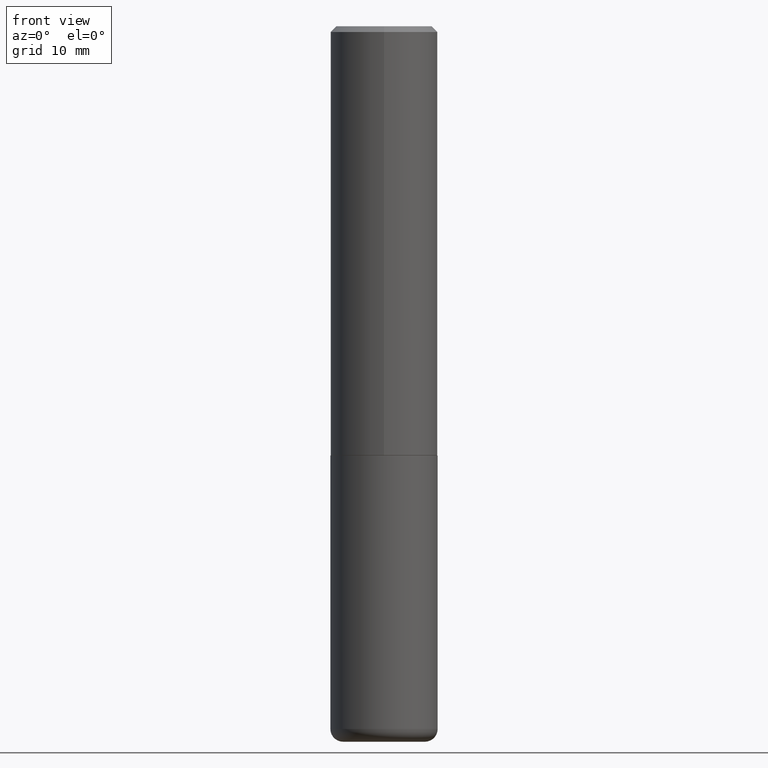
[diagram: clean part render]
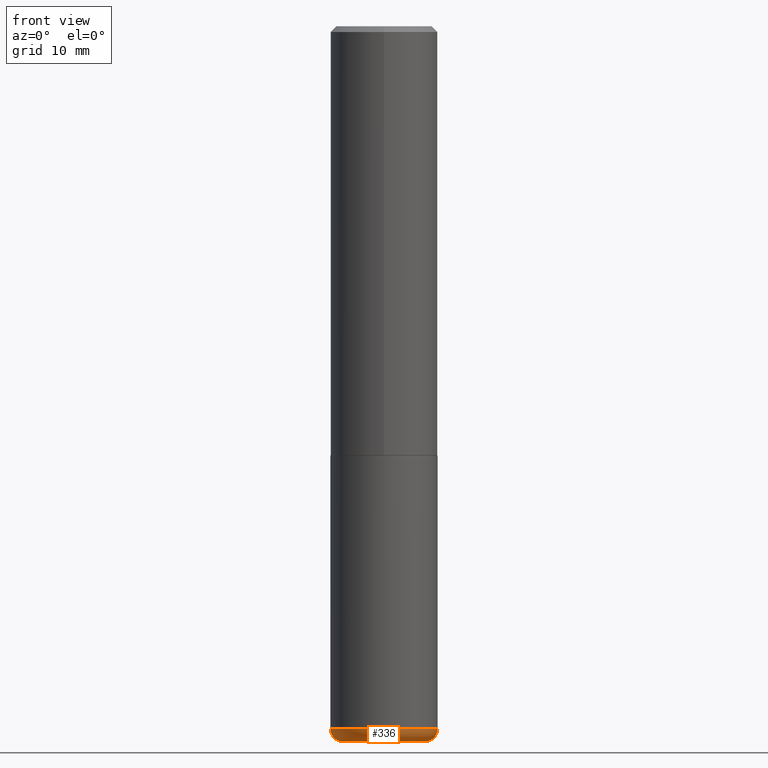
[diagram: same view with one face highlighted and labeled with its STEP entity id]
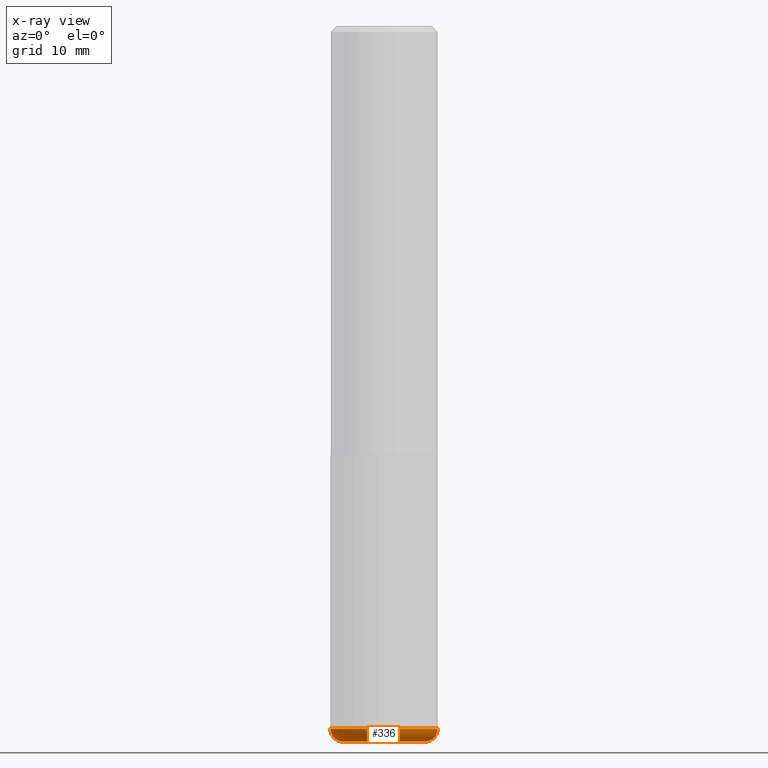
[diagram: x-ray of the same camera — body ghosted, the highlighted face saturated]
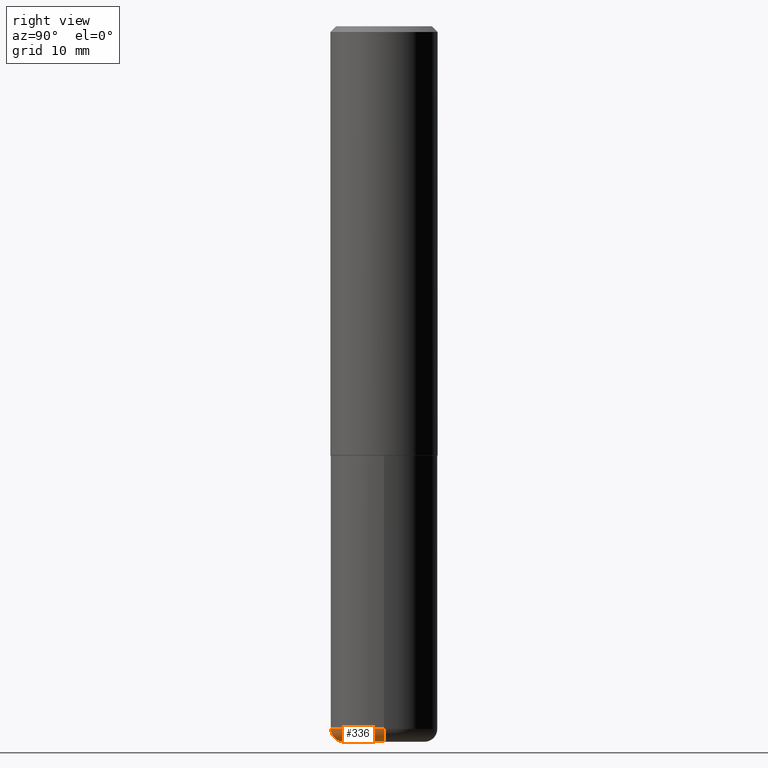
[diagram: same view with one face highlighted and labeled with its STEP entity id]
A machine part, front view. The second image highlights one B-rep face of the part: STEP entity #336.
The next image is the same camera in x-ray: the body ghosted, the highlighted face saturated — about 0% of this face is hidden behind the body in this view.
A second angle (right view) of the same face is appended — the face is thin or edge-on in the first view.
In plain terms, the highlighted toroidal blend (fillet) surface has major radius 3.6195 mm and minor (blend) radius 1.143 mm.
Its self-contained STEP definition (entity closure, byte-faithful):
#11 = VERTEX_POINT ( 'NONE', #292 ) ;
#14 = CARTESIAN_POINT ( 'NONE',  ( 6.003625919184510659E-29, -8.571586686859923311E-15, -2.455000000000000071 ) ) ;
#16 = CARTESIAN_POINT ( 'NONE',  ( -0.1425000000000000155, -7.559063288401780041E-15, -2.455000000000000071 ) ) ;
#32 = CARTESIAN_POINT ( 'NONE',  ( 6.113672015462842613E-29, -8.728703347107864943E-15, -2.500000000000000000 ) ) ;
#84 = AXIS2_PLACEMENT_3D ( 'NONE', #414, #194, #88 ) ;
#87 = TOROIDAL_SURFACE ( 'NONE', #306, 0.1425000000000000155, 0.04499999999999996364 ) ;
#88 = DIRECTION ( 'NONE',  ( 1.000000000000000000, -6.982962677686273810E-15, 0.000000000000000000 ) ) ;
#96 = CARTESIAN_POINT ( 'NONE',  ( -0.1874999999999999722, -7.239319057309735462E-15, -2.455000000000000071 ) ) ;
#115 = DIRECTION ( 'NONE',  ( -2.445468806185136597E-29, 3.491481338843145583E-15, 1.000000000000000000 ) ) ;
#119 = EDGE_LOOP ( 'NONE', ( #259, #248, #222, #187 ) ) ;
#139 = CIRCLE ( 'NONE', #418, 0.04499999999999996364 ) ;
#154 = VERTEX_POINT ( 'NONE', #274 ) ;
#161 = DIRECTION ( 'NONE',  ( -2.445468806185136597E-29, 3.491481338843145583E-15, 1.000000000000000000 ) ) ;
#166 = EDGE_CURVE ( 'NONE', #383, #315, #293, .T. ) ;
#184 = DIRECTION ( 'NONE',  ( 1.000000000000000000, -6.982962677686269077E-15, 4.883557194083113462E-29 ) ) ;
#187 = ORIENTED_EDGE ( 'NONE', *, *, #166, .F. ) ;
#188 = AXIS2_PLACEMENT_3D ( 'NONE', #14, #245, #211 ) ;
#193 = AXIS2_PLACEMENT_3D ( 'NONE', #32, #161, #246 ) ;
#194 = DIRECTION ( 'NONE',  ( -6.982962677686266711E-15, -1.000000000000000000, 3.491481338843145583E-15 ) ) ;
#211 = DIRECTION ( 'NONE',  ( 1.000000000000000000, -6.982962677686266711E-15, 0.000000000000000000 ) ) ;
#222 = ORIENTED_EDGE ( 'NONE', *, *, #283, .T. ) ;
#242 = DIRECTION ( 'NONE',  ( 7.105427357601001859E-15, 1.000000000000000000, -3.491481338843145583E-15 ) ) ;
#245 = DIRECTION ( 'NONE',  ( -2.445468806185136597E-29, 3.491481338843145583E-15, 1.000000000000000000 ) ) ;
#246 = DIRECTION ( 'NONE',  ( 1.000000000000000000, -6.982962677686266711E-15, 0.000000000000000000 ) ) ;
#247 = CARTESIAN_POINT ( 'NONE',  ( 6.003625919184510659E-29, -8.571586686859923311E-15, -2.455000000000000071 ) ) ;
#248 = ORIENTED_EDGE ( 'NONE', *, *, #290, .T. ) ;
#253 = EDGE_CURVE ( 'NONE', #11, #383, #139, .T. ) ;
#259 = ORIENTED_EDGE ( 'NONE', *, *, #253, .F. ) ;
#274 = CARTESIAN_POINT ( 'NONE',  ( 0.1425000000000000155, -9.723775528678158264E-15, -2.500000000000000000 ) ) ;
#283 = EDGE_CURVE ( 'NONE', #154, #315, #384, .T. ) ;
#290 = EDGE_CURVE ( 'NONE', #11, #154, #309, .T. ) ;
#292 = CARTESIAN_POINT ( 'NONE',  ( -0.1425000000000000155, -7.477749502979727779E-15, -2.500000000000000000 ) ) ;
#293 = CIRCLE ( 'NONE', #188, 0.1875000000000000278 ) ;
#306 = AXIS2_PLACEMENT_3D ( 'NONE', #247, #115, #184 ) ;
#309 = CIRCLE ( 'NONE', #193, 0.1425000000000000155 ) ;
#315 = VERTEX_POINT ( 'NONE', #406 ) ;
#336 = ADVANCED_FACE ( 'NONE', ( #378 ), #87, .T. ) ;
#378 = FACE_OUTER_BOUND ( 'NONE', #119, .T. ) ;
#383 = VERTEX_POINT ( 'NONE', #96 ) ;
#384 = CIRCLE ( 'NONE', #84, 0.04499999999999996364 ) ;
#402 = DIRECTION ( 'NONE',  ( -1.000000000000000000, 7.105427357600996337E-15, 0.000000000000000000 ) ) ;
#406 = CARTESIAN_POINT ( 'NONE',  ( 0.1874999999999999722, -9.880892188926098319E-15, -2.455000000000000071 ) ) ;
#414 = CARTESIAN_POINT ( 'NONE',  ( 0.1425000000000000155, -9.566658868430215055E-15, -2.455000000000000071 ) ) ;
#418 = AXIS2_PLACEMENT_3D ( 'NONE', #16, #242, #402 ) ;